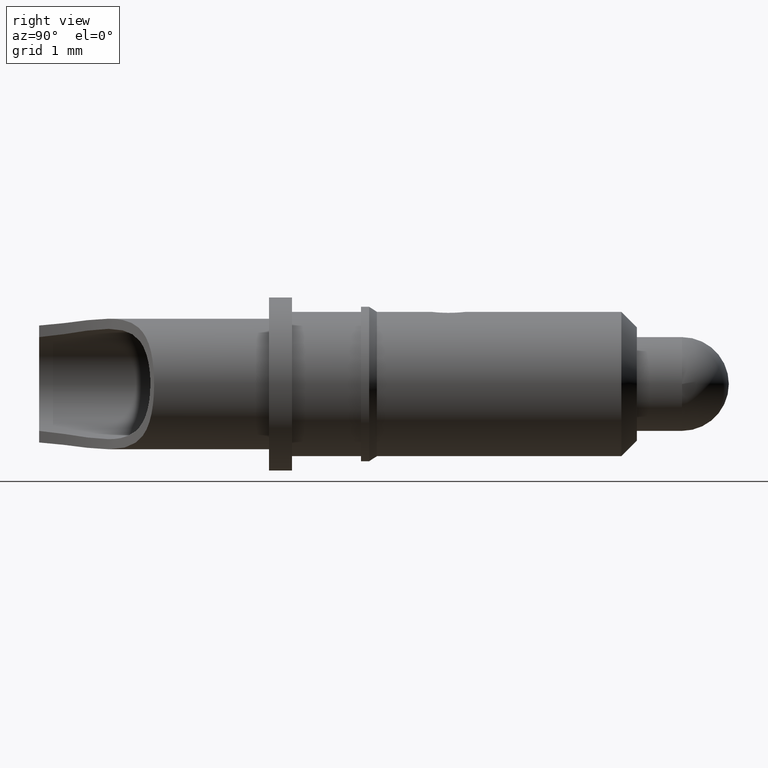
[diagram: clean part render]
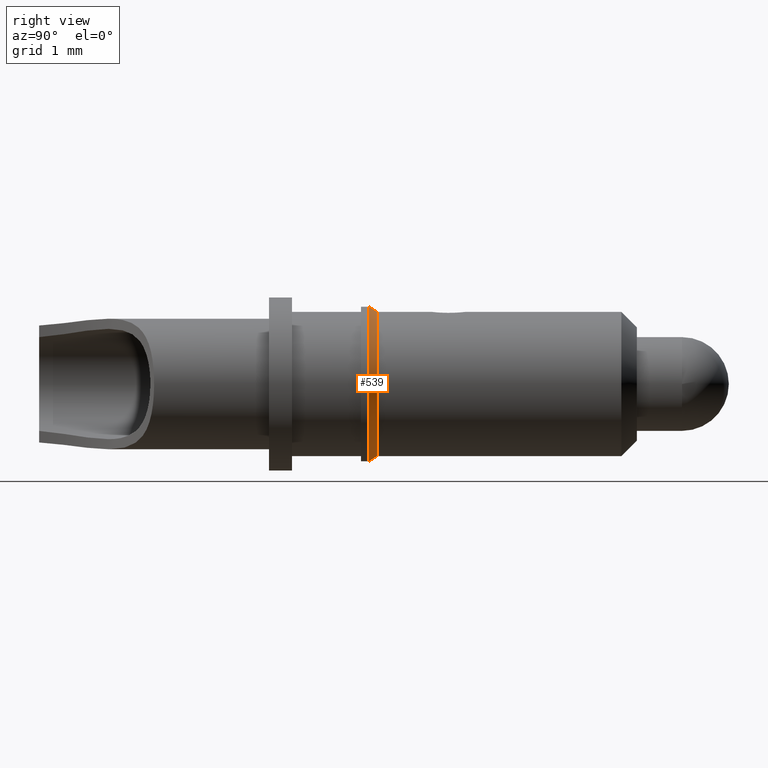
[diagram: same view with one face highlighted and labeled with its STEP entity id]
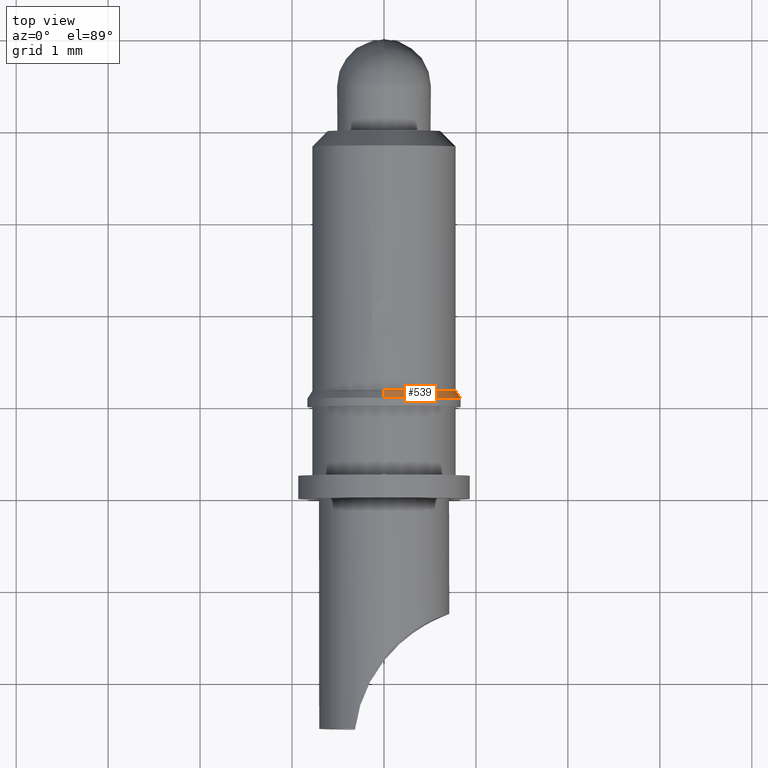
[diagram: same view with one face highlighted and labeled with its STEP entity id]
A machine part, right view. The second image highlights one B-rep face of the part: STEP entity #539.
A second angle (top view) of the same face is appended — the face is thin or edge-on in the first view.
In plain terms, the highlighted conical surface has half-angle 32.787 deg.
Its self-contained STEP definition (entity closure, byte-faithful):
#29 = EDGE_CURVE ( 'NONE', #461, #571, #97, .T. ) ;
#44 = ORIENTED_EDGE ( 'NONE', *, *, #29, .T. ) ;
#70 = CARTESIAN_POINT ( 'NONE',  ( 1.028703311283776800E-016, -3.912410880707184000, 0.8400000000000000800 ) ) ;
#97 = LINE ( 'NONE', #596, #475 ) ;
#103 = AXIS2_PLACEMENT_3D ( 'NONE', #329, #544, #412 ) ;
#106 = FACE_OUTER_BOUND ( 'NONE', #395, .T. ) ;
#327 = AXIS2_PLACEMENT_3D ( 'NONE', #831, #547, #728 ) ;
#329 = CARTESIAN_POINT ( 'NONE',  ( 0.0000000000000000000, -3.912410880707184000, 0.0000000000000000000 ) ) ;
#369 = ORIENTED_EDGE ( 'NONE', *, *, #556, .F. ) ;
#384 = CARTESIAN_POINT ( 'NONE',  ( 0.0000000000000000000, -3.827026094832439300, -0.7850000000000001400 ) ) ;
#389 = CARTESIAN_POINT ( 'NONE',  ( 9.613477373306723600E-017, -3.827026094832439300, 0.7850000000000001400 ) ) ;
#394 = LINE ( 'NONE', #694, #793 ) ;
#395 = EDGE_LOOP ( 'NONE', ( #1050, #44, #369, #730 ) ) ;
#412 = DIRECTION ( 'NONE',  ( 0.0000000000000000000, 0.0000000000000000000, -1.000000000000000000 ) ) ;
#424 = VERTEX_POINT ( 'NONE', #613 ) ;
#461 = VERTEX_POINT ( 'NONE', #389 ) ;
#475 = VECTOR ( 'NONE', #522, 1000.000000000000100 ) ;
#521 = VERTEX_POINT ( 'NONE', #384 ) ;
#522 = DIRECTION ( 'NONE',  ( 6.631734050409635200E-017, -0.8406864623657245300, 0.5415221805198777700 ) ) ;
#539 = ADVANCED_FACE ( 'NONE', ( #106 ), #867, .T. ) ;
#544 = DIRECTION ( 'NONE',  ( -0.0000000000000000000, -1.000000000000000000, -0.0000000000000000000 ) ) ;
#547 = DIRECTION ( 'NONE',  ( -0.0000000000000000000, -1.000000000000000000, -0.0000000000000000000 ) ) ;
#556 = EDGE_CURVE ( 'NONE', #424, #571, #606, .T. ) ;
#571 = VERTEX_POINT ( 'NONE', #70 ) ;
#578 = AXIS2_PLACEMENT_3D ( 'NONE', #1061, #823, #1072 ) ;
#596 = CARTESIAN_POINT ( 'NONE',  ( 9.613477373306723600E-017, -3.827026094832439300, 0.7850000000000001400 ) ) ;
#606 = CIRCLE ( 'NONE', #103, 0.8400000000000000800 ) ;
#613 = CARTESIAN_POINT ( 'NONE',  ( 0.0000000000000000000, -3.912410880707184000, -0.8400000000000000800 ) ) ;
#685 = DIRECTION ( 'NONE',  ( 0.0000000000000000000, -0.8406864623657245300, -0.5415221805198777700 ) ) ;
#694 = CARTESIAN_POINT ( 'NONE',  ( 0.0000000000000000000, -3.827026094832439300, -0.7850000000000001400 ) ) ;
#728 = DIRECTION ( 'NONE',  ( 0.0000000000000000000, 0.0000000000000000000, -1.000000000000000000 ) ) ;
#730 = ORIENTED_EDGE ( 'NONE', *, *, #842, .F. ) ;
#793 = VECTOR ( 'NONE', #685, 1000.000000000000100 ) ;
#803 = CIRCLE ( 'NONE', #578, 0.7850000000000001400 ) ;
#823 = DIRECTION ( 'NONE',  ( -0.0000000000000000000, -1.000000000000000000, -0.0000000000000000000 ) ) ;
#831 = CARTESIAN_POINT ( 'NONE',  ( 0.0000000000000000000, -3.827026094832439300, 0.0000000000000000000 ) ) ;
#842 = EDGE_CURVE ( 'NONE', #521, #424, #394, .T. ) ;
#867 = CONICAL_SURFACE ( 'NONE', #327, 0.7850000000000001400, 0.5722466957124395800 ) ;
#1016 = EDGE_CURVE ( 'NONE', #521, #461, #803, .T. ) ;
#1050 = ORIENTED_EDGE ( 'NONE', *, *, #1016, .T. ) ;
#1061 = CARTESIAN_POINT ( 'NONE',  ( 0.0000000000000000000, -3.827026094832439300, 0.0000000000000000000 ) ) ;
#1072 = DIRECTION ( 'NONE',  ( 0.0000000000000000000, 0.0000000000000000000, -1.000000000000000000 ) ) ;